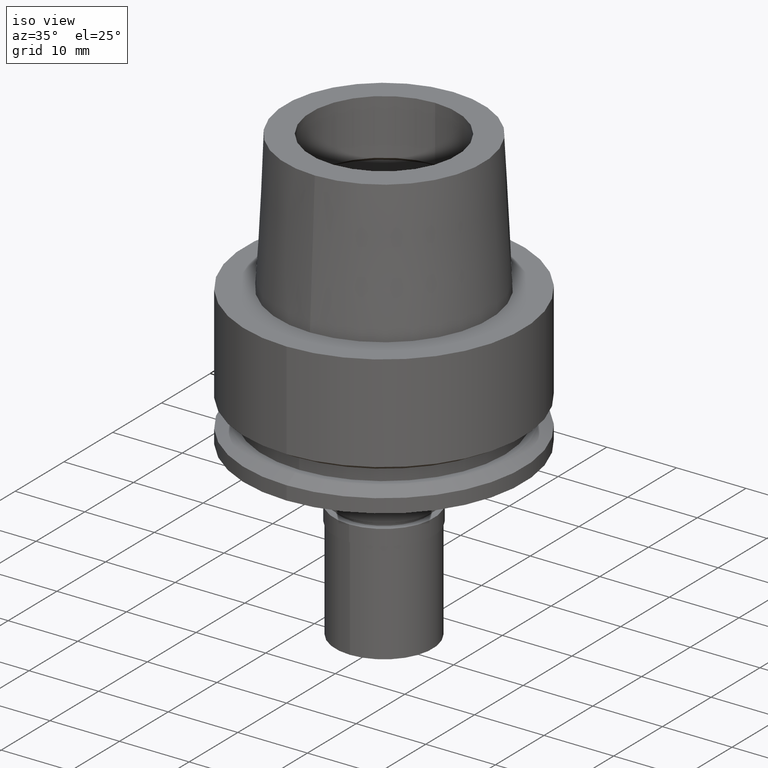
[diagram: clean part render]
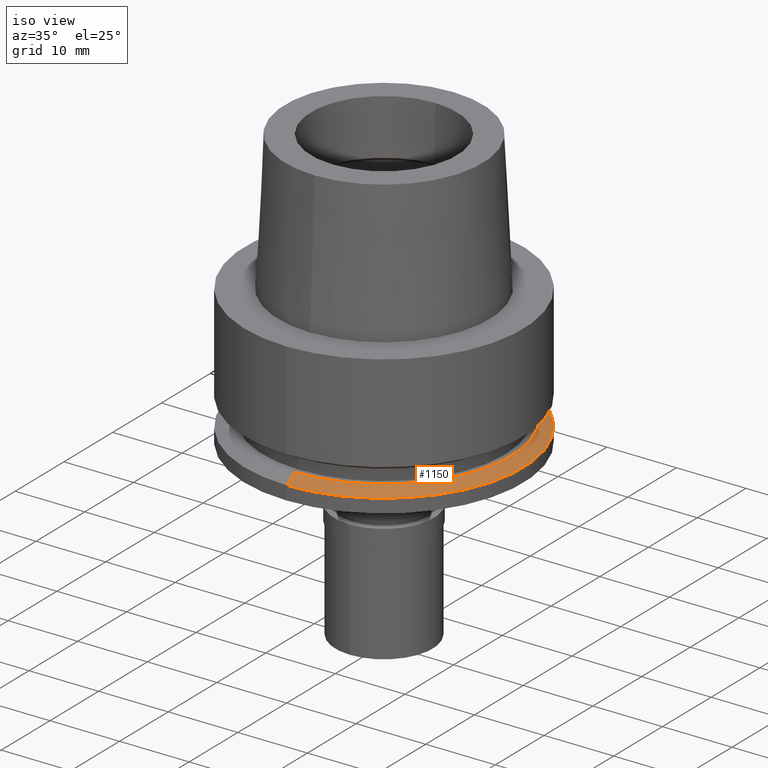
[diagram: same view with one face highlighted and labeled with its STEP entity id]
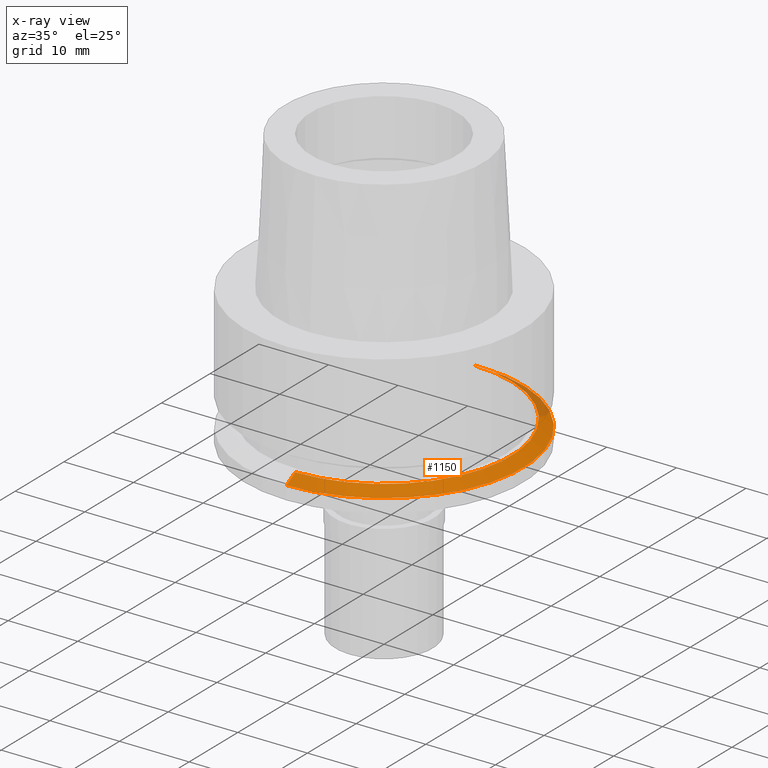
[diagram: x-ray of the same camera — body ghosted, the highlighted face saturated]
A machine part, iso view. The second image highlights one B-rep face of the part: STEP entity #1150.
The next image is the same camera in x-ray: the body ghosted, the highlighted face saturated — about 7% of this face is hidden behind the body in this view.
In plain terms, the highlighted conical surface has half-angle 60 deg.
Its self-contained STEP definition (entity closure, byte-faithful):
#113 = DIRECTION ( 'NONE',  ( 0.0000000000000000000, 1.000000000000000000, 0.0000000000000000000 ) ) ;
#159 = CIRCLE ( 'NONE', #2022, 18.23205080331999994 ) ;
#198 = AXIS2_PLACEMENT_3D ( 'NONE', #1055, #2301, #2692 ) ;
#207 = CARTESIAN_POINT ( 'NONE',  ( 0.0000000000000000000, -20.00000000000000000, -18.02072594461999699 ) ) ;
#211 = VERTEX_POINT ( 'NONE', #2534 ) ;
#362 = EDGE_CURVE ( 'NONE', #2049, #1135, #1719, .T. ) ;
#421 = VECTOR ( 'NONE', #2053, 999.9999999999998863 ) ;
#465 = EDGE_CURVE ( 'NONE', #211, #1845, #159, .T. ) ;
#472 = ORIENTED_EDGE ( 'NONE', *, *, #362, .F. ) ;
#555 = AXIS2_PLACEMENT_3D ( 'NONE', #2095, #2284, #1267 ) ;
#559 = EDGE_CURVE ( 'NONE', #211, #2049, #811, .T. ) ;
#677 = CARTESIAN_POINT ( 'NONE',  ( 0.0000000000000000000, 20.00000000000000000, -18.02072594461999699 ) ) ;
#811 = LINE ( 'NONE', #2458, #421 ) ;
#819 = ORIENTED_EDGE ( 'NONE', *, *, #559, .F. ) ;
#970 = CARTESIAN_POINT ( 'NONE',  ( 0.0000000000000000000, -18.23205080331999994, -17.00000000000000000 ) ) ;
#1022 = FACE_OUTER_BOUND ( 'NONE', #1605, .T. ) ;
#1055 = CARTESIAN_POINT ( 'NONE',  ( 0.0000000000000000000, 0.0000000000000000000, -17.51036297230999850 ) ) ;
#1135 = VERTEX_POINT ( 'NONE', #207 ) ;
#1150 = ADVANCED_FACE ( 'NONE', ( #1022 ), #1855, .T. ) ;
#1162 = LINE ( 'NONE', #1554, #2240 ) ;
#1214 = ORIENTED_EDGE ( 'NONE', *, *, #1735, .T. ) ;
#1267 = DIRECTION ( 'NONE',  ( 0.0000000000000000000, 1.000000000000000000, 0.0000000000000000000 ) ) ;
#1396 = ORIENTED_EDGE ( 'NONE', *, *, #465, .T. ) ;
#1554 = CARTESIAN_POINT ( 'NONE',  ( 0.0000000000000000000, -18.23205080331999994, -17.00000000000000000 ) ) ;
#1605 = EDGE_LOOP ( 'NONE', ( #1396, #1214, #472, #819 ) ) ;
#1719 = CIRCLE ( 'NONE', #555, 20.00000000000000000 ) ;
#1735 = EDGE_CURVE ( 'NONE', #1845, #1135, #1162, .T. ) ;
#1845 = VERTEX_POINT ( 'NONE', #970 ) ;
#1855 = CONICAL_SURFACE ( 'NONE', #198, 19.11602540165999997, 1.047197551196400456 ) ;
#1987 = DIRECTION ( 'NONE',  ( 0.0000000000000000000, 0.0000000000000000000, -1.000000000000000000 ) ) ;
#2022 = AXIS2_PLACEMENT_3D ( 'NONE', #2151, #1987, #113 ) ;
#2049 = VERTEX_POINT ( 'NONE', #677 ) ;
#2053 = DIRECTION ( 'NONE',  ( 0.0000000000000000000, 0.8660254037841628172, -0.5000000000004778400 ) ) ;
#2095 = CARTESIAN_POINT ( 'NONE',  ( 0.0000000000000000000, 0.0000000000000000000, -18.02072594461999699 ) ) ;
#2151 = CARTESIAN_POINT ( 'NONE',  ( 0.0000000000000000000, 0.0000000000000000000, -17.00000000000000000 ) ) ;
#2240 = VECTOR ( 'NONE', #2613, 999.9999999999998863 ) ;
#2284 = DIRECTION ( 'NONE',  ( 0.0000000000000000000, 0.0000000000000000000, -1.000000000000000000 ) ) ;
#2301 = DIRECTION ( 'NONE',  ( 0.0000000000000000000, 0.0000000000000000000, -1.000000000000000000 ) ) ;
#2458 = CARTESIAN_POINT ( 'NONE',  ( 0.0000000000000000000, 18.23205080331999994, -17.00000000000000000 ) ) ;
#2534 = CARTESIAN_POINT ( 'NONE',  ( 0.0000000000000000000, 18.23205080331999994, -17.00000000000000000 ) ) ;
#2613 = DIRECTION ( 'NONE',  ( 0.0000000000000000000, -0.8660254037841628172, -0.5000000000004778400 ) ) ;
#2692 = DIRECTION ( 'NONE',  ( 0.0000000000000000000, -1.000000000000000000, 0.0000000000000000000 ) ) ;